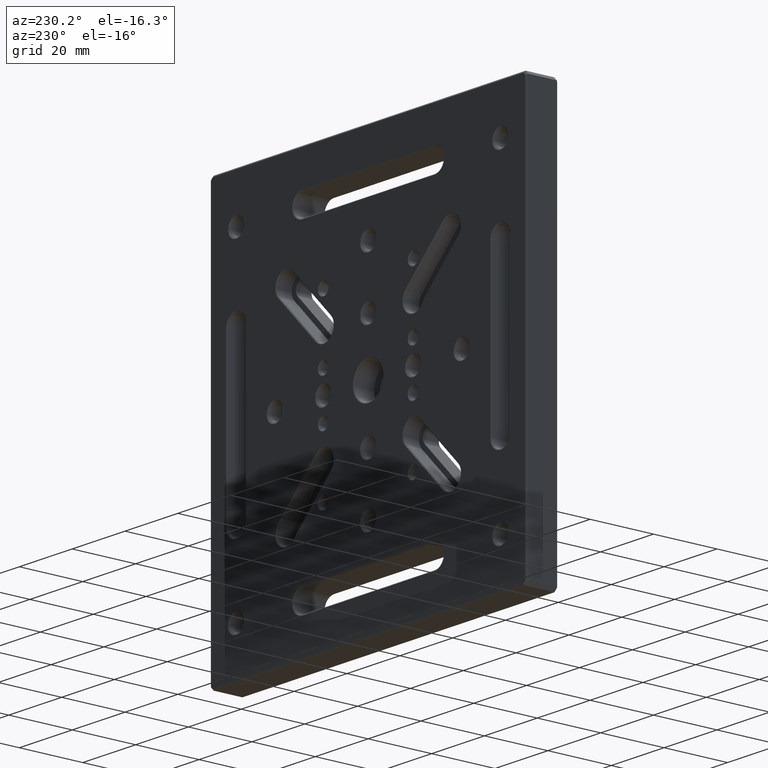
[diagram: clean part render]
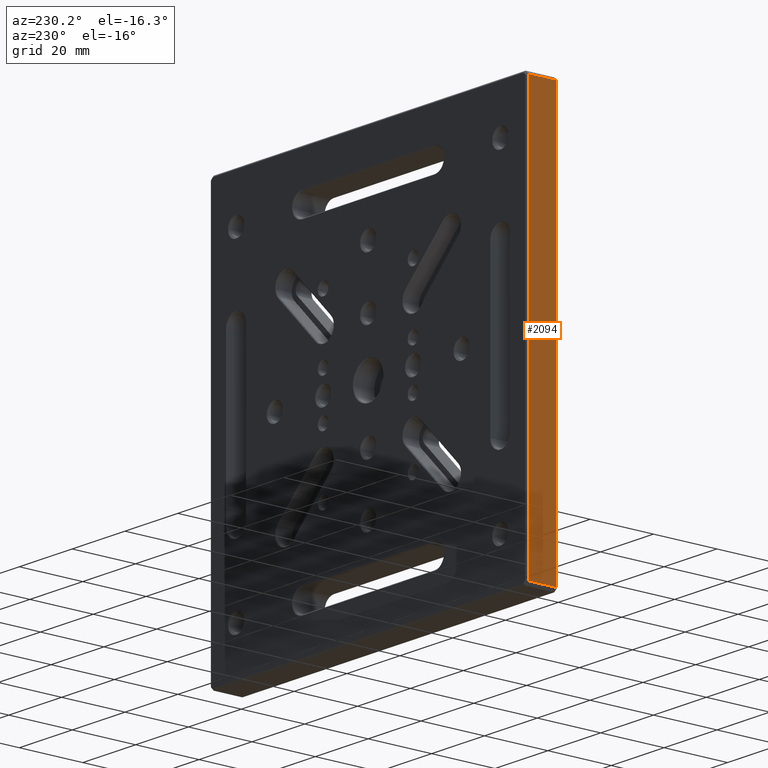
[diagram: same view with one face highlighted and labeled with its STEP entity id]
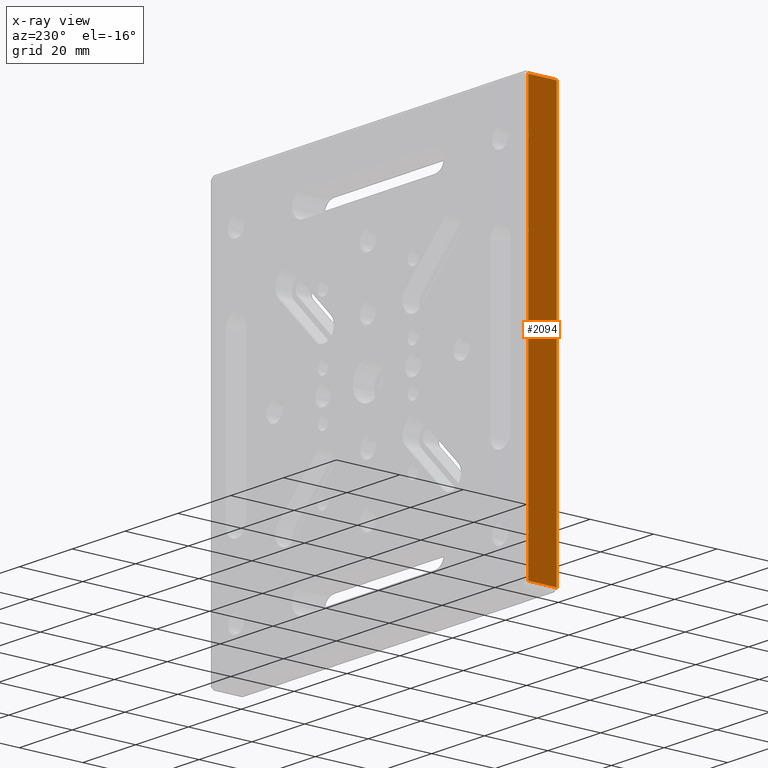
[diagram: x-ray of the same camera — body ghosted, the highlighted face saturated]
A machine part, auxiliary view. The second image highlights one B-rep face of the part: STEP entity #2094.
The next image is the same camera in x-ray: the body ghosted, the highlighted face saturated — about 0% of this face is hidden behind the body in this view.
In plain terms, the highlighted planar face has unit normal (1, 0, -0).
Its self-contained STEP definition (entity closure, byte-faithful):
#142 = DIRECTION ( 'NONE',  ( 0.000000000000000000, 1.000000000000000000, 0.000000000000000000 ) ) ;
#344 = CARTESIAN_POINT ( 'NONE',  ( -60.00000000000001421, 10.00000000000000000, -64.00000000000002842 ) ) ;
#398 = DIRECTION ( 'NONE',  ( 1.000000000000000000, 0.000000000000000000, -1.067522139062650425E-16 ) ) ;
#410 = LINE ( 'NONE', #2830, #2372 ) ;
#479 = ORIENTED_EDGE ( 'NONE', *, *, #4164, .T. ) ;
#483 = VERTEX_POINT ( 'NONE', #1056 ) ;
#557 = LINE ( 'NONE', #3296, #1128 ) ;
#668 = EDGE_LOOP ( 'NONE', ( #479, #2375, #1299, #2736 ) ) ;
#1056 = CARTESIAN_POINT ( 'NONE',  ( -60.00000000000001421, 0.5000000000000281997, -64.00000000000002842 ) ) ;
#1128 = VECTOR ( 'NONE', #3897, 1000.000000000000000 ) ;
#1156 = CARTESIAN_POINT ( 'NONE',  ( -60.00000000000001421, 10.00000000000000000, -65.00000000000000000 ) ) ;
#1299 = ORIENTED_EDGE ( 'NONE', *, *, #1517, .T. ) ;
#1408 = CARTESIAN_POINT ( 'NONE',  ( -60.00000000000000000, 9.500000000000000000, 64.00000000000002842 ) ) ;
#1487 = PLANE ( 'NONE',  #3263 ) ;
#1517 = EDGE_CURVE ( 'NONE', #3308, #483, #3330, .T. ) ;
#1555 = CARTESIAN_POINT ( 'NONE',  ( -60.00000000000001421, 9.500000000000000000, -64.00000000000002842 ) ) ;
#2004 = CARTESIAN_POINT ( 'NONE',  ( -60.00000000000000000, 0.5000000000000281997, 64.00000000000002842 ) ) ;
#2094 = ADVANCED_FACE ( 'NONE', ( #2775 ), #1487, .F. ) ;
#2251 = EDGE_CURVE ( 'NONE', #483, #3565, #557, .T. ) ;
#2372 = VECTOR ( 'NONE', #142, 1000.000000000000000 ) ;
#2375 = ORIENTED_EDGE ( 'NONE', *, *, #3829, .T. ) ;
#2736 = ORIENTED_EDGE ( 'NONE', *, *, #2251, .T. ) ;
#2737 = CARTESIAN_POINT ( 'NONE',  ( -60.00000000000001421, 9.500000000000000000, -64.00000000000002842 ) ) ;
#2775 = FACE_OUTER_BOUND ( 'NONE', #668, .T. ) ;
#2830 = CARTESIAN_POINT ( 'NONE',  ( -60.00000000000000000, 10.00000000000000000, 64.00000000000002842 ) ) ;
#2841 = DIRECTION ( 'NONE',  ( -1.067522139062650425E-16, 0.000000000000000000, -1.000000000000000000 ) ) ;
#2887 = LINE ( 'NONE', #1555, #3516 ) ;
#3263 = AXIS2_PLACEMENT_3D ( 'NONE', #1156, #398, #2841 ) ;
#3293 = VERTEX_POINT ( 'NONE', #1408 ) ;
#3296 = CARTESIAN_POINT ( 'NONE',  ( -60.00000000000001421, 0.5000000000000281997, -65.00000000000000000 ) ) ;
#3308 = VERTEX_POINT ( 'NONE', #2737 ) ;
#3330 = LINE ( 'NONE', #344, #3430 ) ;
#3430 = VECTOR ( 'NONE', #4043, 1000.000000000000000 ) ;
#3516 = VECTOR ( 'NONE', #3645, 1000.000000000000000 ) ;
#3565 = VERTEX_POINT ( 'NONE', #2004 ) ;
#3645 = DIRECTION ( 'NONE',  ( -1.067522139062650425E-16, 0.000000000000000000, -1.000000000000000000 ) ) ;
#3829 = EDGE_CURVE ( 'NONE', #3293, #3308, #2887, .T. ) ;
#3897 = DIRECTION ( 'NONE',  ( 1.067522139062650425E-16, 0.000000000000000000, 1.000000000000000000 ) ) ;
#4043 = DIRECTION ( 'NONE',  ( 0.000000000000000000, -1.000000000000000000, 0.000000000000000000 ) ) ;
#4164 = EDGE_CURVE ( 'NONE', #3565, #3293, #410, .T. ) ;